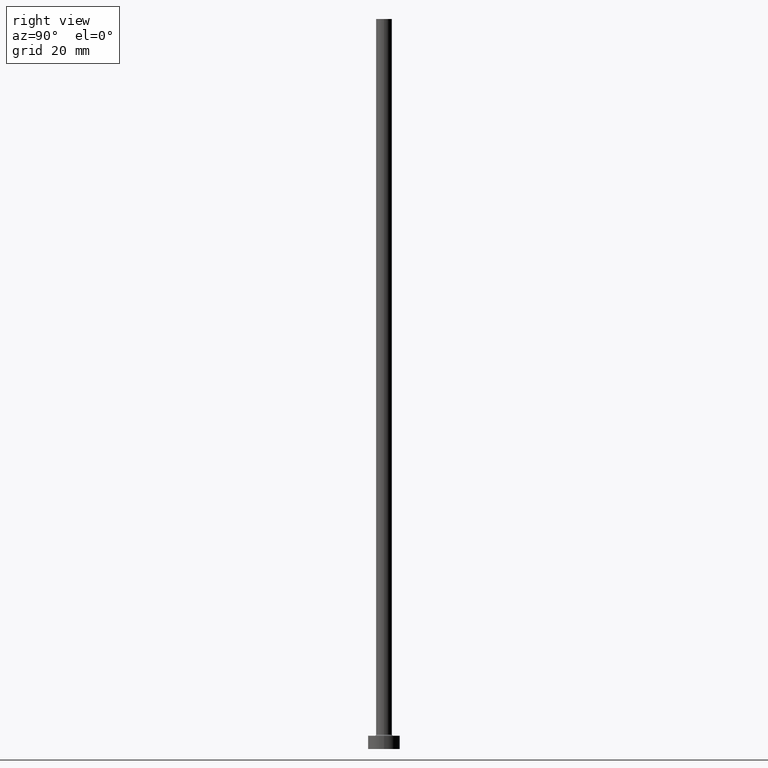
[diagram: clean part render]
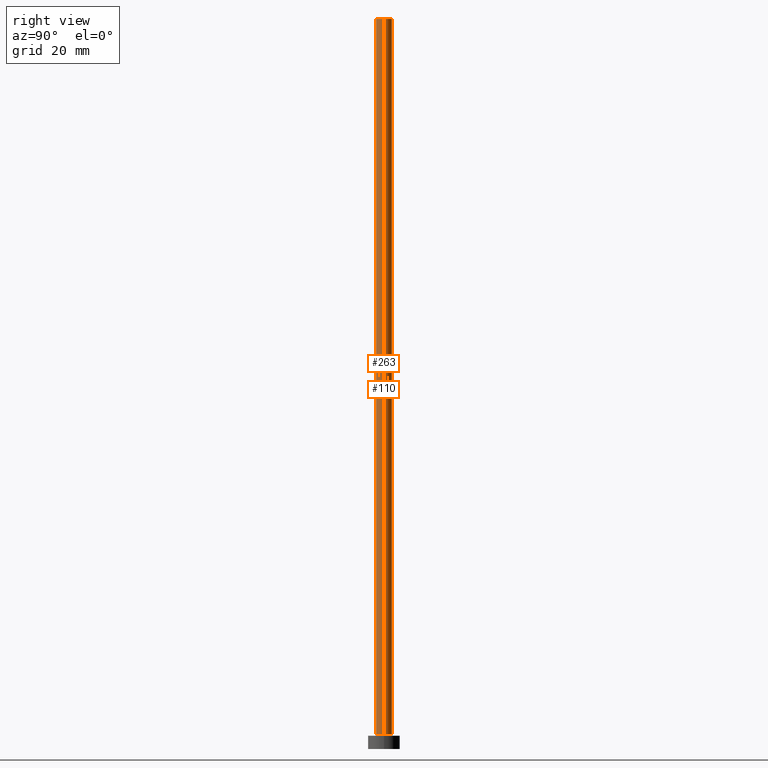
[diagram: same view with one multi-face feature highlighted, each face labeled with its STEP entity id]
A machine part, right view. The highlighted faces form ONE feature: a constant-radius fillet chain: 2 tangent blend faces with common blend radius 3 mm. The faces share edges in the B-rep.
Their STEP definitions:
[1] entity #110 (Cylinder):
#4 = EDGE_CURVE ( 'NONE', #96, #62, #368, .T. ) ;
#9 = AXIS2_PLACEMENT_3D ( 'NONE', #200, #341, #415 ) ;
#21 = DIRECTION ( 'NONE',  ( -0.000000000000000000, -0.000000000000000000, -1.000000000000000000 ) ) ;
#37 = LINE ( 'NONE', #338, #48 ) ;
#48 = VECTOR ( 'NONE', #21, 1000.000000000000000 ) ;
#54 = CARTESIAN_POINT ( 'NONE',  ( 3.000000000000000444, 3.673940397442060361E-16, 275.0000000000000000 ) ) ;
#62 = VERTEX_POINT ( 'NONE', #414 ) ;
#70 = CIRCLE ( 'NONE', #124, 3.000000000000000444 ) ;
#79 = DIRECTION ( 'NONE',  ( 0.000000000000000000, 0.000000000000000000, 1.000000000000000000 ) ) ;
#96 = VERTEX_POINT ( 'NONE', #380 ) ;
#110 = ADVANCED_FACE ( 'NONE', ( #239 ), #270, .T. ) ;
#124 = AXIS2_PLACEMENT_3D ( 'NONE', #193, #325, #431 ) ;
#150 = LINE ( 'NONE', #212, #190 ) ;
#157 = EDGE_CURVE ( 'NONE', #417, #62, #37, .T. ) ;
#160 = EDGE_LOOP ( 'NONE', ( #242, #442, #390, #322 ) ) ;
#190 = VECTOR ( 'NONE', #352, 1000.000000000000000 ) ;
#193 = CARTESIAN_POINT ( 'NONE',  ( 0.000000000000000000, 0.000000000000000000, 275.0000000000000000 ) ) ;
#200 = CARTESIAN_POINT ( 'NONE',  ( 0.000000000000000000, 0.000000000000000000, 275.0000000000000000 ) ) ;
#212 = CARTESIAN_POINT ( 'NONE',  ( 3.000000000000000444, 3.673940397442060361E-16, 275.0000000000000000 ) ) ;
#225 = EDGE_CURVE ( 'NONE', #304, #417, #70, .T. ) ;
#239 = FACE_OUTER_BOUND ( 'NONE', #160, .T. ) ;
#242 = ORIENTED_EDGE ( 'NONE', *, *, #225, .F. ) ;
#252 = EDGE_CURVE ( 'NONE', #304, #96, #150, .T. ) ;
#270 = CYLINDRICAL_SURFACE ( 'NONE', #9, 3.000000000000000444 ) ;
#281 = AXIS2_PLACEMENT_3D ( 'NONE', #434, #79, #324 ) ;
#304 = VERTEX_POINT ( 'NONE', #54 ) ;
#322 = ORIENTED_EDGE ( 'NONE', *, *, #157, .F. ) ;
#324 = DIRECTION ( 'NONE',  ( 1.000000000000000000, 0.000000000000000000, 0.000000000000000000 ) ) ;
#325 = DIRECTION ( 'NONE',  ( 0.000000000000000000, 0.000000000000000000, 1.000000000000000000 ) ) ;
#338 = CARTESIAN_POINT ( 'NONE',  ( -3.000000000000000444, 0.000000000000000000, 275.0000000000000000 ) ) ;
#341 = DIRECTION ( 'NONE',  ( -0.000000000000000000, -0.000000000000000000, -1.000000000000000000 ) ) ;
#352 = DIRECTION ( 'NONE',  ( -0.000000000000000000, -0.000000000000000000, -1.000000000000000000 ) ) ;
#368 = CIRCLE ( 'NONE', #281, 3.000000000000000444 ) ;
#380 = CARTESIAN_POINT ( 'NONE',  ( 3.000000000000000444, 3.673940397442060361E-16, 5.500000000000005329 ) ) ;
#383 = CARTESIAN_POINT ( 'NONE',  ( -3.000000000000000444, 0.000000000000000000, 275.0000000000000000 ) ) ;
#390 = ORIENTED_EDGE ( 'NONE', *, *, #4, .T. ) ;
#414 = CARTESIAN_POINT ( 'NONE',  ( -3.000000000000000444, 0.000000000000000000, 5.500000000000005329 ) ) ;
#415 = DIRECTION ( 'NONE',  ( -1.000000000000000000, 0.000000000000000000, 0.000000000000000000 ) ) ;
#417 = VERTEX_POINT ( 'NONE', #383 ) ;
#431 = DIRECTION ( 'NONE',  ( 1.000000000000000000, 0.000000000000000000, 0.000000000000000000 ) ) ;
#434 = CARTESIAN_POINT ( 'NONE',  ( 0.000000000000000000, 0.000000000000000000, 5.500000000000005329 ) ) ;
#442 = ORIENTED_EDGE ( 'NONE', *, *, #252, .T. ) ;
[2] entity #263 (Cylinder):
#21 = DIRECTION ( 'NONE',  ( -0.000000000000000000, -0.000000000000000000, -1.000000000000000000 ) ) ;
#34 = CARTESIAN_POINT ( 'NONE',  ( 0.000000000000000000, 0.000000000000000000, 5.500000000000005329 ) ) ;
#37 = LINE ( 'NONE', #338, #48 ) ;
#48 = VECTOR ( 'NONE', #21, 1000.000000000000000 ) ;
#54 = CARTESIAN_POINT ( 'NONE',  ( 3.000000000000000444, 3.673940397442060361E-16, 275.0000000000000000 ) ) ;
#62 = VERTEX_POINT ( 'NONE', #414 ) ;
#73 = CYLINDRICAL_SURFACE ( 'NONE', #76, 3.000000000000000444 ) ;
#76 = AXIS2_PLACEMENT_3D ( 'NONE', #176, #132, #271 ) ;
#96 = VERTEX_POINT ( 'NONE', #380 ) ;
#120 = AXIS2_PLACEMENT_3D ( 'NONE', #163, #201, #228 ) ;
#132 = DIRECTION ( 'NONE',  ( -0.000000000000000000, -0.000000000000000000, -1.000000000000000000 ) ) ;
#140 = EDGE_CURVE ( 'NONE', #62, #96, #429, .T. ) ;
#150 = LINE ( 'NONE', #212, #190 ) ;
#157 = EDGE_CURVE ( 'NONE', #417, #62, #37, .T. ) ;
#163 = CARTESIAN_POINT ( 'NONE',  ( 0.000000000000000000, 0.000000000000000000, 275.0000000000000000 ) ) ;
#170 = DIRECTION ( 'NONE',  ( 0.000000000000000000, 0.000000000000000000, 1.000000000000000000 ) ) ;
#176 = CARTESIAN_POINT ( 'NONE',  ( 0.000000000000000000, 0.000000000000000000, 275.0000000000000000 ) ) ;
#190 = VECTOR ( 'NONE', #352, 1000.000000000000000 ) ;
#201 = DIRECTION ( 'NONE',  ( 0.000000000000000000, 0.000000000000000000, 1.000000000000000000 ) ) ;
#212 = CARTESIAN_POINT ( 'NONE',  ( 3.000000000000000444, 3.673940397442060361E-16, 275.0000000000000000 ) ) ;
#228 = DIRECTION ( 'NONE',  ( 1.000000000000000000, 0.000000000000000000, 0.000000000000000000 ) ) ;
#237 = ORIENTED_EDGE ( 'NONE', *, *, #428, .F. ) ;
#252 = EDGE_CURVE ( 'NONE', #304, #96, #150, .T. ) ;
#263 = ADVANCED_FACE ( 'NONE', ( #387 ), #73, .T. ) ;
#268 = AXIS2_PLACEMENT_3D ( 'NONE', #34, #170, #452 ) ;
#271 = DIRECTION ( 'NONE',  ( -1.000000000000000000, 0.000000000000000000, 0.000000000000000000 ) ) ;
#276 = CIRCLE ( 'NONE', #120, 3.000000000000000444 ) ;
#289 = ORIENTED_EDGE ( 'NONE', *, *, #157, .T. ) ;
#304 = VERTEX_POINT ( 'NONE', #54 ) ;
#338 = CARTESIAN_POINT ( 'NONE',  ( -3.000000000000000444, 0.000000000000000000, 275.0000000000000000 ) ) ;
#352 = DIRECTION ( 'NONE',  ( -0.000000000000000000, -0.000000000000000000, -1.000000000000000000 ) ) ;
#375 = ORIENTED_EDGE ( 'NONE', *, *, #252, .F. ) ;
#380 = CARTESIAN_POINT ( 'NONE',  ( 3.000000000000000444, 3.673940397442060361E-16, 5.500000000000005329 ) ) ;
#383 = CARTESIAN_POINT ( 'NONE',  ( -3.000000000000000444, 0.000000000000000000, 275.0000000000000000 ) ) ;
#387 = FACE_OUTER_BOUND ( 'NONE', #427, .T. ) ;
#395 = ORIENTED_EDGE ( 'NONE', *, *, #140, .T. ) ;
#414 = CARTESIAN_POINT ( 'NONE',  ( -3.000000000000000444, 0.000000000000000000, 5.500000000000005329 ) ) ;
#417 = VERTEX_POINT ( 'NONE', #383 ) ;
#427 = EDGE_LOOP ( 'NONE', ( #375, #237, #289, #395 ) ) ;
#428 = EDGE_CURVE ( 'NONE', #417, #304, #276, .T. ) ;
#429 = CIRCLE ( 'NONE', #268, 3.000000000000000444 ) ;
#452 = DIRECTION ( 'NONE',  ( 1.000000000000000000, 0.000000000000000000, 0.000000000000000000 ) ) ;